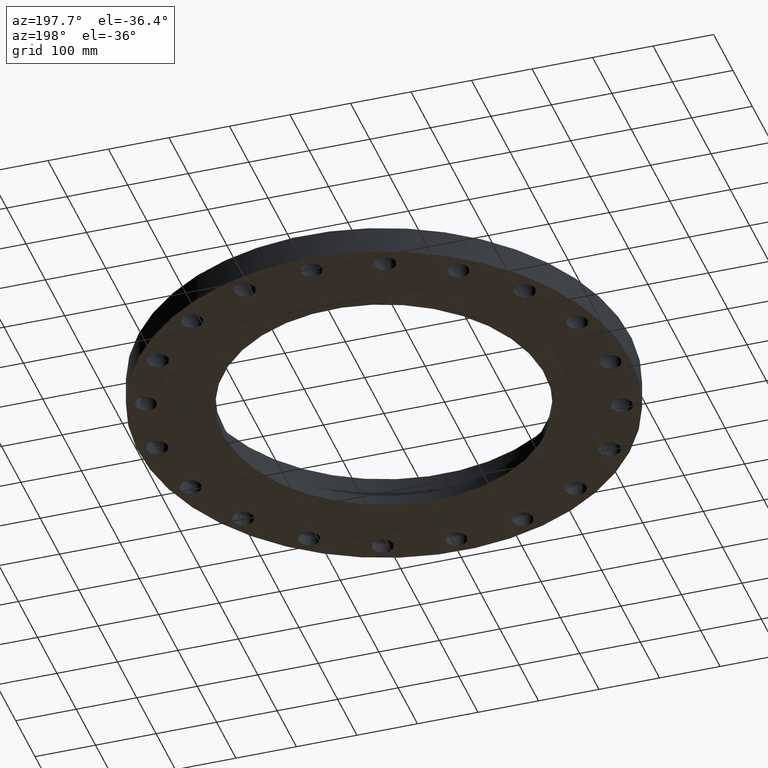
[diagram: clean part render]
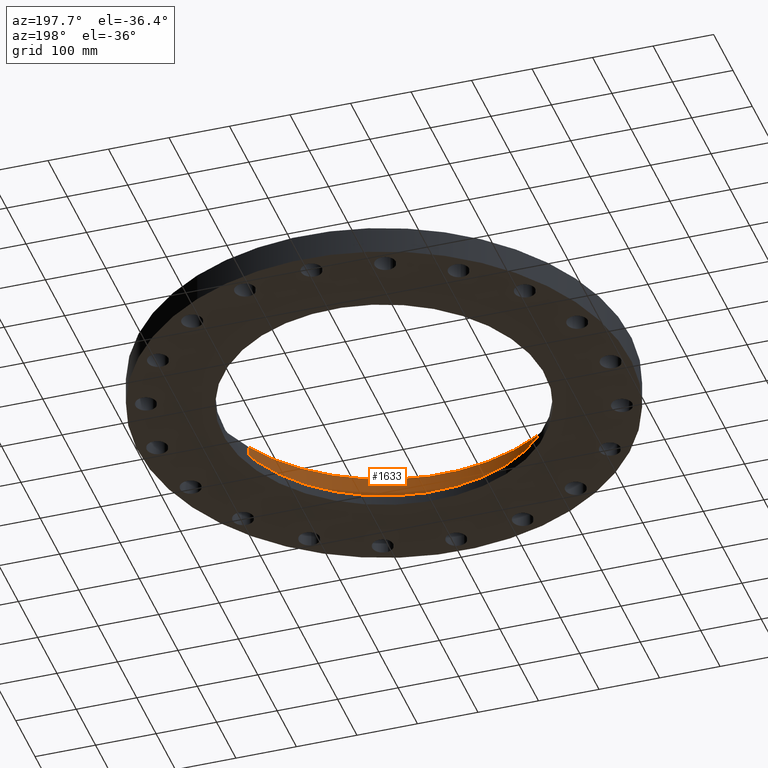
[diagram: same view with one face highlighted and labeled with its STEP entity id]
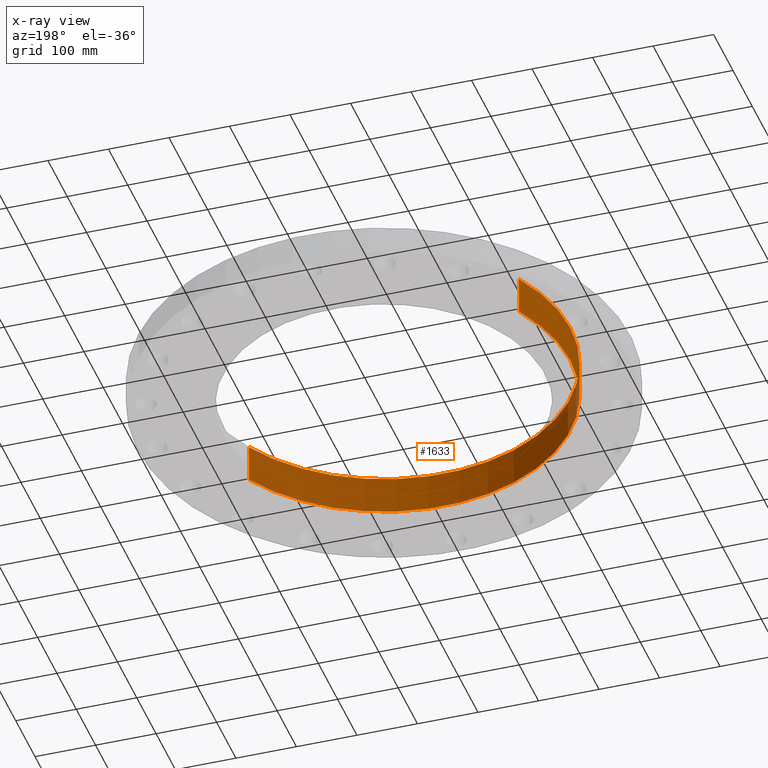
[diagram: x-ray of the same camera — body ghosted, the highlighted face saturated]
A machine part, auxiliary view. The second image highlights one B-rep face of the part: STEP entity #1633.
The next image is the same camera in x-ray: the body ghosted, the highlighted face saturated — about 2% of this face is hidden behind the body in this view.
In plain terms, the highlighted cylindrical surface (partial cylindrical patch) has radius 307.975 mm, axis along (0, 0, -1).
Its self-contained STEP definition (entity closure, byte-faithful):
#51=AXIS2_PLACEMENT_3D('Circle Axis2P3D',#49,#50,$) ;
#737=AXIS2_PLACEMENT_3D('Circle Axis2P3D',#735,#736,$) ;
#1608=AXIS2_PLACEMENT_3D('Cylinder Axis2P3D',#1605,#1606,#1607) ;
#44=CARTESIAN_POINT('Vertex',(-10.640688563,5.8130346556,0.690000000003)) ;
#46=CARTESIAN_POINT('Vertex',(10.640688563,-5.8130346556,0.690000000003)) ;
#49=CARTESIAN_POINT('Axis2P3D Location',(0.,-6.99353086378E-017,0.690000000003)) ;
#730=CARTESIAN_POINT('Vertex',(-10.640688563,5.8130346556,3.19000000001)) ;
#732=CARTESIAN_POINT('Vertex',(10.640688563,-5.8130346556,3.19000000001)) ;
#735=CARTESIAN_POINT('Axis2P3D Location',(-5.59482469102E-016,0.,3.19000000001)) ;
#1605=CARTESIAN_POINT('Axis2P3D Location',(0.,-6.99353086378E-017,3.18606299214)) ;
#1610=CARTESIAN_POINT('Line Origine',(-10.640688563,5.8130346556,1.94000000001)) ;
#1615=CARTESIAN_POINT('Line Origine',(10.640688563,-5.8130346556,1.94000000001)) ;
#50=DIRECTION('Axis2P3D Direction',(0.,0.,-0.0393700787402)) ;
#736=DIRECTION('Axis2P3D Direction',(0.,0.,-0.0393700787402)) ;
#1606=DIRECTION('Axis2P3D Direction',(0.,0.,-0.0393700787402)) ;
#1607=DIRECTION('Axis2P3D XDirection',(0.0345504945626,-0.0188750212049,0.)) ;
#1611=DIRECTION('Vector Direction',(0.,0.,-0.0393700787402)) ;
#1616=DIRECTION('Vector Direction',(0.,0.,-0.0393700787402)) ;
#1612=VECTOR('Line Direction',#1611,0.0393700787402) ;
#1617=VECTOR('Line Direction',#1616,0.0393700787402) ;
#1628=ORIENTED_EDGE('',*,*,#739,.F.) ;
#1629=ORIENTED_EDGE('',*,*,#1619,.F.) ;
#1630=ORIENTED_EDGE('',*,*,#53,.T.) ;
#1631=ORIENTED_EDGE('',*,*,#1614,.T.) ;
#1633=ADVANCED_FACE('PartBody',(#1632),#1609,.F.) ;
#52=CIRCLE('generated circle',#51,12.125) ;
#738=CIRCLE('generated circle',#737,12.125) ;
#1609=CYLINDRICAL_SURFACE('generated cylinder',#1608,12.125) ;
#53=EDGE_CURVE('',#47,#45,#52,.T.) ;
#739=EDGE_CURVE('',#733,#731,#738,.T.) ;
#1614=EDGE_CURVE('',#45,#731,#1613,.F.) ;
#1619=EDGE_CURVE('',#47,#733,#1618,.F.) ;
#1627=EDGE_LOOP('',(#1628,#1629,#1630,#1631)) ;
#1632=FACE_OUTER_BOUND('',#1627,.T.) ;
#1613=LINE('Line',#1610,#1612) ;
#1618=LINE('Line',#1615,#1617) ;
#45=VERTEX_POINT('',#44) ;
#47=VERTEX_POINT('',#46) ;
#731=VERTEX_POINT('',#730) ;
#733=VERTEX_POINT('',#732) ;